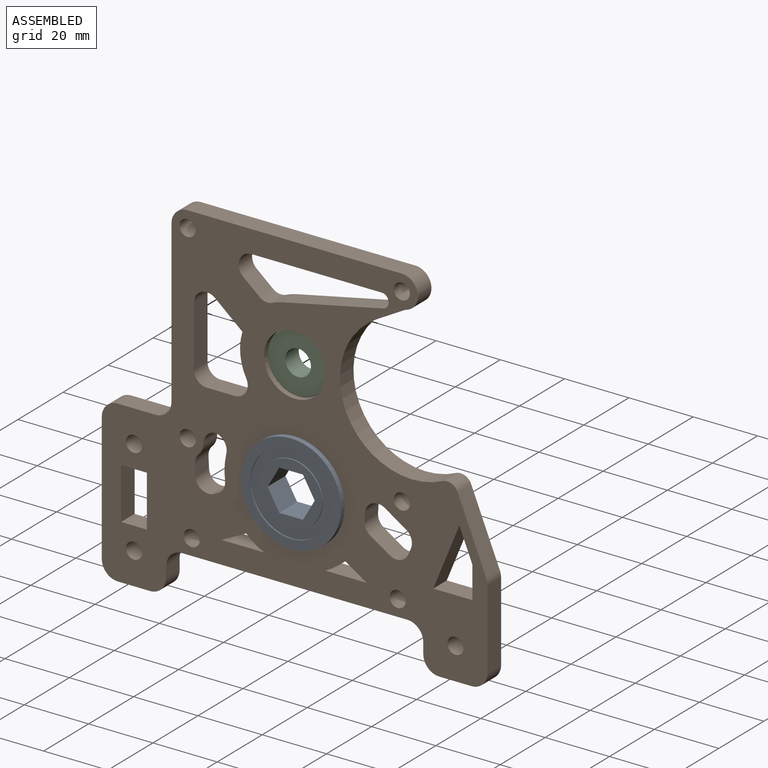
[diagram: assembled view]
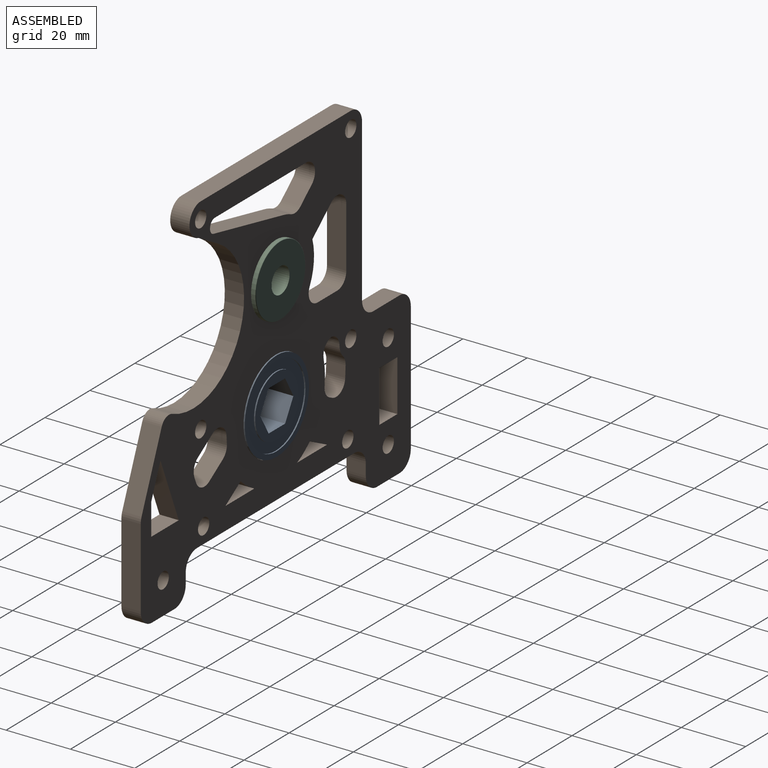
[diagram: assembled view, second angle]
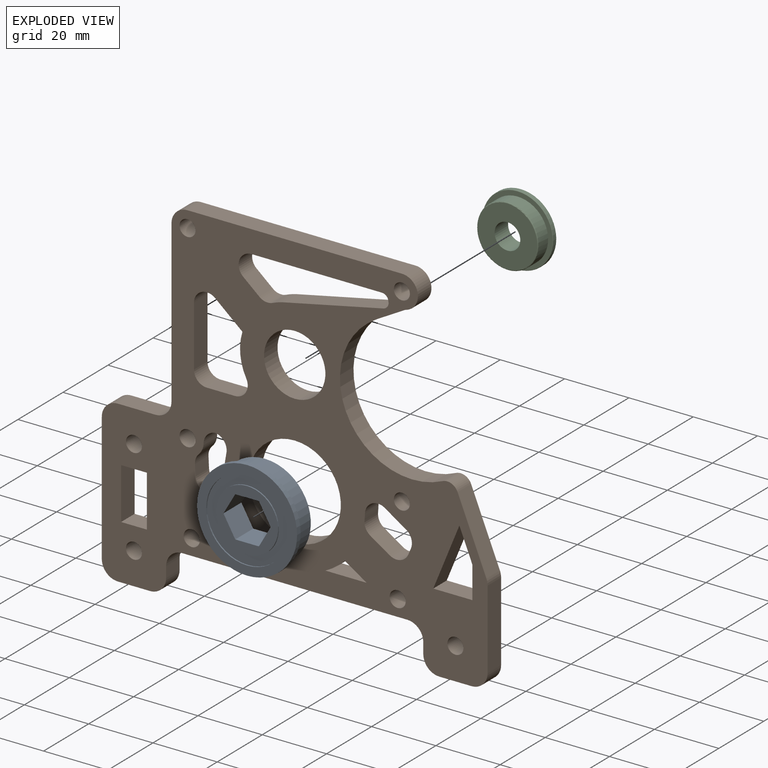
[diagram: exploded view]
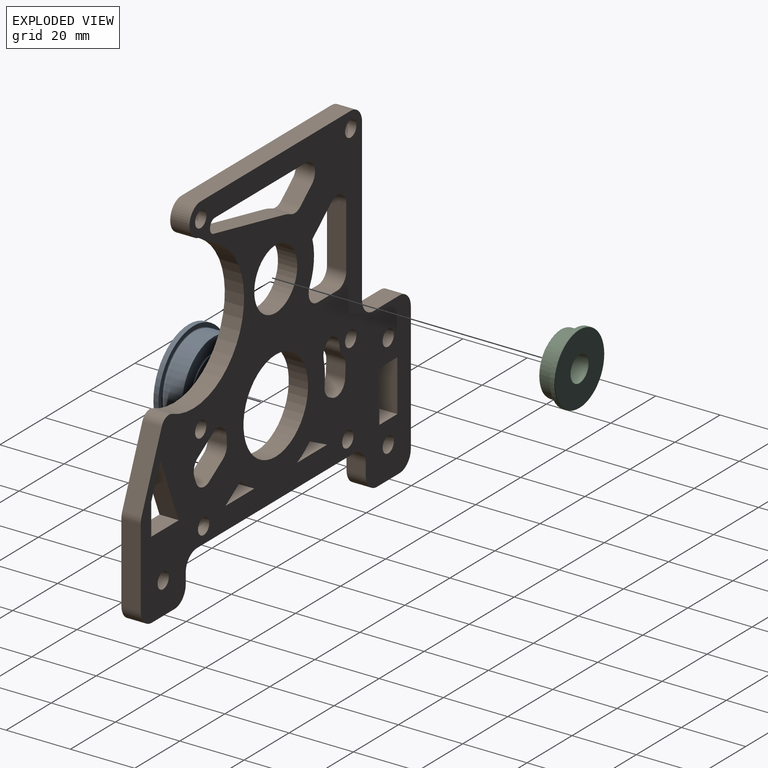
[diagram: exploded view, second angle]
ASSEMBLY  parts=3 mates=4
PART A: 21 faces, bbox 31.1x31.1x7.9 mm
  f0: torus R=14.27mm, axis (0,0,1), area 46.4mm2, adj f4,f10
  f1: cylinder r=9.65mm len=19.3mm, axis (0,0,1), area 23.1mm2, adj f12,f13
  f2: cylinder r=12.7mm len=25.4mm, axis (0,0,1), area 30.4mm2, adj f11,f12
  f3: cylinder r=14.27mm len=28.55mm, axis (0,0,1), area 502.3mm2, adj f4,f11
  f4: cone r=14.06mm half-angle=30deg, axis (0,0,-1), area 38.5mm2, adj f0,f3
  f5: cylinder r=15.56mm len=31.12mm, axis (0,0,1), area 155.2mm2, adj f9,f10
  f6: cylinder r=12.7mm len=25.4mm, axis (0,0,1), area 30.4mm2, adj f8,f9
  f7: cylinder r=9.65mm len=19.3mm, axis (0,0,1), area 23.1mm2, adj f8,f14
  f8: plane 25.4x25.4mm, normal (0,0,1), area 214mm2, adj f6,f7
  f9: plane 31.12x31.12mm, normal (0,0,1), area 253.7mm2, adj f5,f6
  f10: plane 31.12x31.12mm, normal (0,0,-1), area 120.2mm2, adj f0,f5
  f11: plane 28.55x28.55mm, normal (0,0,-1), area 133.5mm2, adj f2,f3
  f12: plane 25.4x25.4mm, normal (0,0,-1), area 214mm2, adj f1,f2
  f13: plane 19.3x19.3mm, normal (0,0,-1), area 152.6mm2, adj f1,f15,f16,f17,f18,f19,f20
  f14: plane 19.3x19.3mm, normal (0,0,1), area 152.6mm2, adj f7,f15,f16,f17,f18,f19,f20
  f15: plane 7.94x6.36mm, normal (-0.87,-0.5,0), area 58.3mm2, adj f13,f14,f16,f20
  f16: plane 7.94x6.36mm, normal (-0.87,0.5,0), area 58.3mm2, adj f13,f14,f15,f17
  f17: plane 7.94x7.34mm, normal (0,1,0), area 58.3mm2, adj f13,f14,f16,f18
  f18: plane 7.94x6.36mm, normal (0.87,0.5,0), area 58.3mm2, adj f13,f14,f17,f19
  f19: plane 7.94x6.36mm, normal (0.87,-0.5,0), area 58.3mm2, adj f13,f14,f18,f20
  f20: plane 7.94x7.34mm, normal (0,-1,0), area 58.3mm2, adj f13,f14,f15,f19
PART B: 85 faces, bbox 120x6x110.2 mm
  f0: cylinder r=3.5mm len=6mm, axis (0,1,0), area 33.9mm2, adj f36,f39,f40,f70
  f1: plane 8.72x6mm, normal (0,0,1), area 52.3mm2, adj f39,f40,f50,f54
  f2: plane 18.82x6mm, normal (1,0,0), area 112.9mm2, adj f39,f40,f50,f51
  f3: plane 8.48x7.2mm, normal (-0.65,0,-0.76), area 66.7mm2, adj f29,f39,f40,f51
  f4: plane 6x5.98mm, normal (0.55,0,0.84), area 42.8mm2, adj f39,f40,f46,f55
  f5: cylinder r=21.85mm len=6mm, axis (0,1,0), area 11.7mm2, adj f39,f40,f46,f47
  f6: plane 6.61x6mm, normal (-0.55,0,-0.84), area 47.3mm2, adj f39,f40,f47,f52
  f7: plane 12.83x6mm, normal (0,0,1), area 77mm2, adj f8,f32,f39,f40
  f8: cylinder r=21.85mm len=6.1mm, axis (0,1,0), area 45.3mm2, adj f7,f32,f39,f40
  f9: plane 7.7x6mm, normal (0.45,0,-0.89), area 51.7mm2, adj f10,f33,f39,f40
  f10: cylinder r=21.85mm len=6mm, axis (0,1,0), area 40.8mm2, adj f9,f33,f39,f40
  f11: cylinder r=21.85mm len=7.7mm, axis (0,1,0), area 46.5mm2, adj f39,f40,f44,f45
  f12: plane 6x1.21mm, normal (-0.45,0,0.89), area 8.1mm2, adj f39,f40,f45,f48
  f13: plane 6x3.49mm, normal (1,0,0.05), area 21mm2, adj f39,f40,f48,f49
  f14: plane 8.87x6mm, normal (0.49,0,-0.87), area 61.2mm2, adj f15,f36,f39,f40
  f15: cylinder r=5mm len=9.89mm, axis (0,1,0), area 88mm2, adj f14,f16,f39,f40
  f16: plane 66.67x6mm, normal (0,0,1), area 400mm2, adj f15,f17,f39,f40
  f17: cylinder r=5mm len=6mm, axis (0,1,0), area 47.1mm2, adj f16,f18,f39,f40
  f18: plane 50.17x6mm, normal (-1,0,0), area 301mm2, adj f17,f39,f40,f79
  f19: plane 70x6mm, normal (0,0,-1), area 420mm2, adj f39,f40,f83,f84
  f20: plane 6x0.36mm, normal (-0.98,0,-0.21), area 2.2mm2, adj f39,f40,f41,f42
  f21: plane 31.14x6.59mm, normal (-0.21,0,0.98), area 191mm2, adj f22,f39,f40,f41
  f22: cylinder r=17mm len=6mm, axis (0,1,0), area 20.7mm2, adj f21,f39,f40,f56
  f23: plane 6x5.05mm, normal (0.65,0,0.76), area 39.8mm2, adj f39,f40,f53,f56
  f24: cylinder r=2.5mm len=6mm, axis (0,1,0), area 94.2mm2, adj f39,f40
  f25: cylinder r=2.5mm len=6mm, axis (0,1,0), area 94.2mm2, adj f39,f40
  f26: cylinder r=9.55mm len=19.1mm, axis (0,1,0), area 360mm2, adj f39,f40
  f27: cylinder r=2.5mm len=6mm, axis (0,1,0), area 94.2mm2, adj f39,f40
  f28: cylinder r=2.5mm len=6mm, axis (0,1,0), area 94.2mm2, adj f39,f40
  f29: cylinder r=17mm len=12.81mm, axis (0,1,0), area 79.2mm2, adj f3,f39,f40,f54
  f30: cylinder r=14.35mm len=28.7mm, axis (0,1,0), area 541mm2, adj f39,f40
  f31: plane 6x1.88mm, normal (-0.93,0,0.38), area 12.2mm2, adj f39,f40,f52,f55
  f32: plane 6.74x6mm, normal (-0.55,0,-0.84), area 48.2mm2, adj f7,f8,f39,f40
  f33: plane 13.27x6mm, normal (0,0,1), area 79.6mm2, adj f9,f10,f39,f40
  f34: cylinder r=5mm len=6mm, axis (0,1,0), area 23.2mm2, adj f39,f40,f43,f49
  f35: cylinder r=2.5mm len=6mm, axis (0,1,0), area 94.2mm2, adj f39,f40
  f36: cylinder r=22.5mm len=42.09mm, axis (0,1,0), area 412.9mm2, adj f0,f14,f39,f40
  f37: plane 40.58x6mm, normal (0,0,-1), area 243.5mm2, adj f39,f40,f42,f53
  f38: cylinder r=2.5mm len=6mm, axis (0,1,0), area 94.2mm2, adj f39,f40
  f39: plane 120x110.17mm, normal (0,-1,0), area 6162.9mm2, adj f0,f1,f2,f3,f4,f5,f6,f7
  f40: plane 120x110.17mm, normal (0,1,0), area 6162.9mm2, adj f0,f1,f2,f3,f4,f5,f6,f7
  f41: cylinder r=2mm len=6mm, axis (0,-1,0), area 18.8mm2, adj f20,f21,f39,f40
  f42: cylinder r=2mm len=6mm, axis (0,1,0), area 16.3mm2, adj f20,f37,f39,f40
  f43: cylinder r=4mm len=6mm, axis (0,1,0), area 34.7mm2, adj f34,f39,f40,f44
  f44: cylinder r=4mm len=6mm, axis (0,1,0), area 40.7mm2, adj f11,f39,f40,f43
  f45: cylinder r=4mm len=6mm, axis (0,1,0), area 29.5mm2, adj f11,f12,f39,f40
  f46: cylinder r=4mm len=6mm, axis (0,1,0), area 26.4mm2, adj f4,f5,f39,f40
  f47: cylinder r=4mm len=6.18mm, axis (0,1,0), area 51.1mm2, adj f5,f6,f39,f40
  f48: cylinder r=4mm len=6mm, axis (0,1,0), area 47.7mm2, adj f12,f13,f39,f40
  f49: cylinder r=4mm len=6mm, axis (0,1,0), area 20.2mm2, adj f13,f34,f39,f40
  f50: cylinder r=4mm len=6mm, axis (0,-1,0), area 37.7mm2, adj f1,f2,f39,f40
  f51: cylinder r=4mm len=6.59mm, axis (0,1,0), area 54.6mm2, adj f2,f3,f39,f40
  f52: cylinder r=4mm len=6mm, axis (0,1,0), area 33.2mm2, adj f6,f31,f39,f40
  f53: cylinder r=4mm len=7.05mm, axis (0,-1,0), area 58.5mm2, adj f23,f37,f39,f40
  f54: cylinder r=4mm len=6mm, axis (0,1,0), area 49.3mm2, adj f1,f29,f39,f40
  f55: cylinder r=4mm len=6mm, axis (0,-1,0), area 42.2mm2, adj f4,f31,f39,f40
  f56: cylinder r=4mm len=6mm, axis (0,1,0), area 26.8mm2, adj f22,f23,f39,f40
  f57: plane 16x6mm, normal (-1,0,0), area 96mm2, adj f39,f40,f58,f65
  f58: plane 8x6mm, normal (0,0,1), area 48mm2, adj f39,f40,f57,f59
  f59: plane 16x6mm, normal (1,0,0), area 96mm2, adj f39,f40,f58,f65
  f60: plane 11.67x6mm, normal (0,0,1), area 70mm2, adj f39,f40,f79,f82
  f61: plane 40x6mm, normal (-1,0,0), area 240mm2, adj f39,f40,f81,f82
  f62: plane 10x6mm, normal (0,0,-1), area 60mm2, adj f39,f40,f80,f81
  f63: plane 6x3.33mm, normal (1,0,0), area 20mm2, adj f39,f40,f80,f84
  f64: cylinder r=2.5mm len=6mm, axis (0,-1,0), area 94.2mm2, adj f39,f40
  f65: plane 8x6mm, normal (0,0,-1), area 48mm2, adj f39,f40,f57,f59
  f66: cylinder r=2.5mm len=6mm, axis (0,-1,0), area 94.2mm2, adj f39,f40
  f67: plane 6x3.33mm, normal (-1,0,0), area 20mm2, adj f39,f40,f76,f83
  f68: plane 10x6mm, normal (0,0,-1), area 60mm2, adj f39,f40,f76,f77
  f69: plane 24.6x6mm, normal (1,0,0), area 147.6mm2, adj f39,f40,f77,f78
  f70: plane 21.89x8.95mm, normal (0.93,0,0.38), area 141.9mm2, adj f0,f39,f40,f78
  f71: plane 9.94x6mm, normal (-1,0,0), area 59.6mm2, adj f39,f40,f72,f75
  f72: plane 12.19x6mm, normal (0,0,1), area 73.1mm2, adj f39,f40,f71,f73
  f73: plane 19.88x8.13mm, normal (0.93,0,-0.38), area 128.8mm2, adj f39,f40,f72,f75
  f74: cylinder r=2.5mm len=6mm, axis (0,-1,0), area 94.2mm2, adj f39,f40
  f75: plane 9.94x6mm, normal (-0.93,0,-0.38), area 64.4mm2, adj f39,f40,f71,f73
  f76: cylinder r=5mm len=6mm, axis (0,-1,0), area 47.1mm2, adj f39,f40,f67,f68
  f77: cylinder r=5mm len=6mm, axis (0,1,0), area 47.1mm2, adj f39,f40,f68,f69
  f78: cylinder r=5mm len=6mm, axis (0,-1,0), area 11.6mm2, adj f39,f40,f69,f70
  f79: cylinder r=5mm len=6mm, axis (0,1,0), area 47.1mm2, adj f18,f39,f40,f60
  f80: cylinder r=5mm len=6mm, axis (0,-1,0), area 47.1mm2, adj f39,f40,f62,f63
  f81: cylinder r=5mm len=6mm, axis (0,-1,0), area 47.1mm2, adj f39,f40,f61,f62
  f82: cylinder r=5mm len=6mm, axis (0,1,0), area 47.1mm2, adj f39,f40,f60,f61
  f83: cylinder r=5mm len=6mm, axis (0,-1,0), area 47.1mm2, adj f19,f39,f40,f67
  f84: cylinder r=5mm len=6mm, axis (0,-1,0), area 47.1mm2, adj f19,f39,f40,f63
PART C: 9 faces, bbox 23.9x23.9x6 mm
  f0: torus R=10.92mm, axis (0,0,-1), area 13.8mm2, adj f3,f7
  f1: torus R=10.92mm, axis (0,0,1), area 13.8mm2, adj f3,f8
  f2: torus R=9.25mm, axis (0,0,1), area 23.6mm2, adj f5,f6
  f3: cylinder r=11.05mm len=22.1mm, axis (0,0,-1), area 86.5mm2, adj f0,f1
  f4: cylinder r=4mm len=8mm, axis (0,0,-1), area 150.8mm2, adj f6,f7
  f5: cylinder r=9.5mm len=19mm, axis (0,0,-1), area 253.4mm2, adj f2,f8
  f6: plane 18.49x18.49mm, normal (0,0,1), area 218.3mm2, adj f2,f4
  f7: plane 21.84x21.84mm, normal (0,0,-1), area 324.5mm2, adj f0,f4
  f8: plane 21.84x21.84mm, normal (0,0,1), area 91.2mm2, adj f1,f5
PLACE A rot(axis=(1,0,0),90deg) t=(-65.1,-23.37,-32.63)mm
PLACE B t=(-65.1,-23.72,3)mm
PLACE C rot(axis=(1,0,0),90deg) t=(-65.1,-22.22,3)mm
MATE slider C.f0 <-> B.f26  axis (0,1,0) through (-65.1,-27.97,3)mm
MATE slider A.f0 <-> B.f30  axis (0,-1,0) through (-65.1,-26.17,-32.63)mm
MATE planar A.f0 <-> B.f30  axis (0,1,0) through (-65.1,-29.72,-32.63)mm
MATE planar C.f0 <-> B.f22  axis (0,-1,0) through (-65.1,-23.72,3)mm
